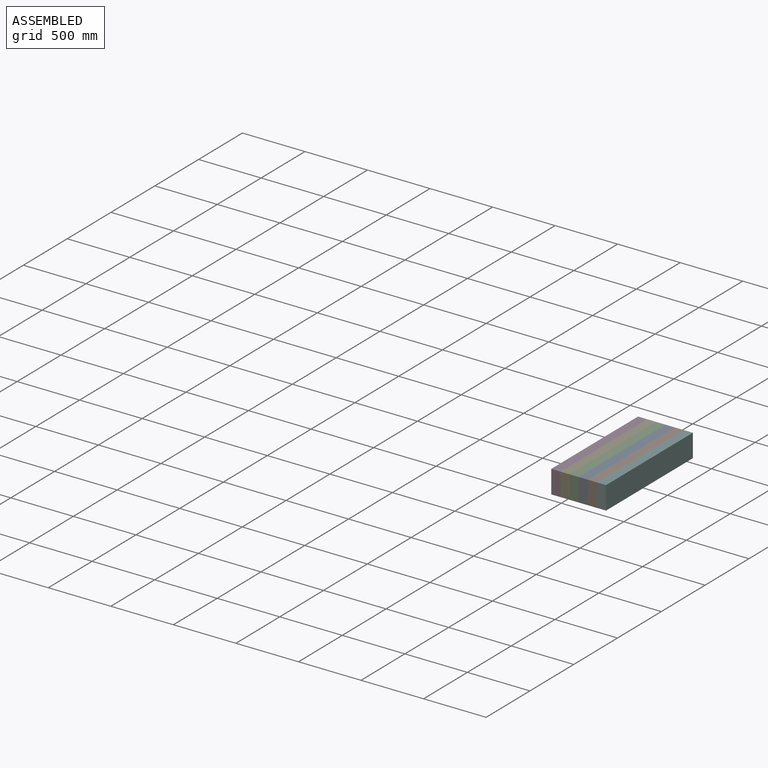
[diagram: assembled view]
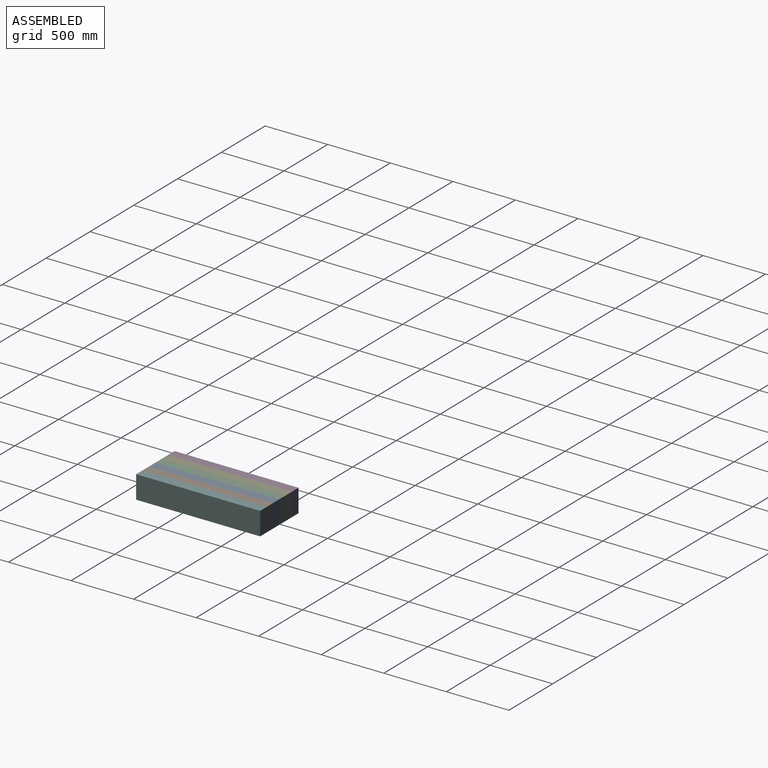
[diagram: assembled view, second angle]
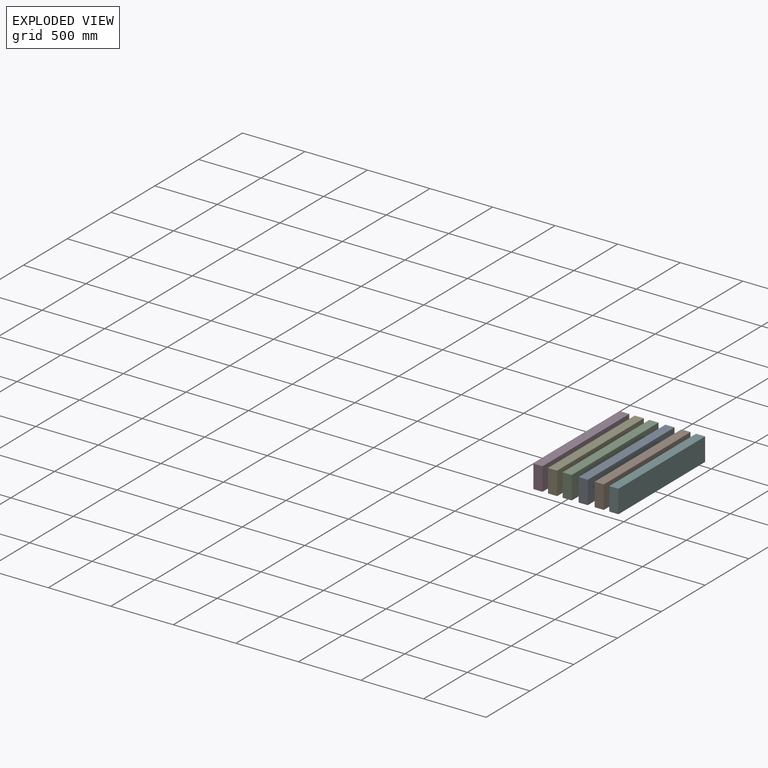
[diagram: exploded view]
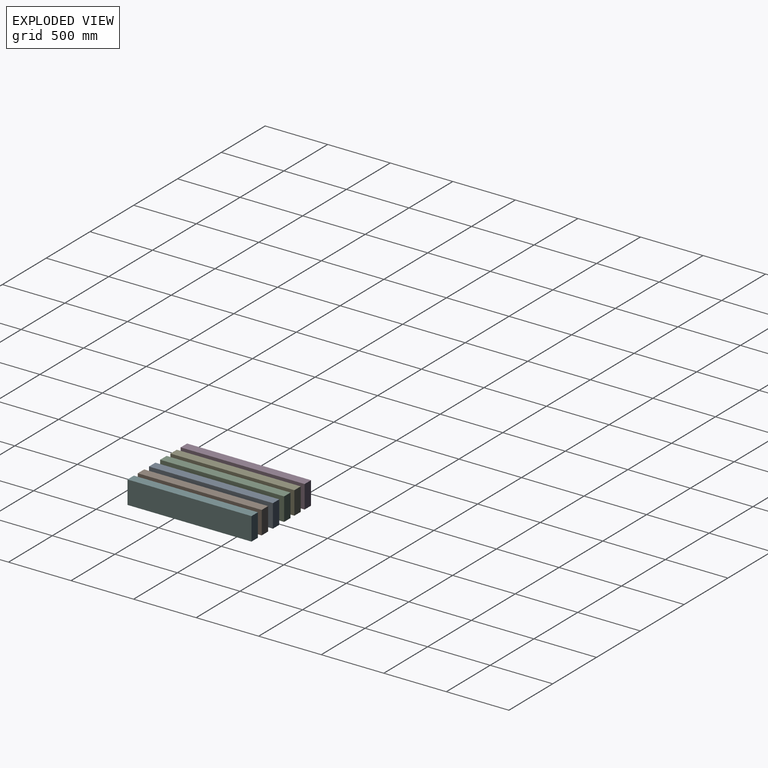
[diagram: exploded view, second angle]
ASSEMBLY  parts=6 mates=5
PART A: 6 faces, bbox 73x990.6x184.2 mm
  f0: plane 990.6x184.15mm, normal (-1,0,0), area 182419mm2, adj f1,f3,f4,f5
  f1: plane 184.15x73.03mm, normal (0,-1,0), area 13447.6mm2, adj f0,f2,f4,f5
  f2: plane 990.6x184.15mm, normal (1,0,0), area 182419mm2, adj f1,f3,f4,f5
  f3: plane 184.15x73.03mm, normal (0,1,0), area 13447.6mm2, adj f0,f2,f4,f5
  f4: plane 990.6x73.03mm, normal (0,0,1), area 72338.6mm2, adj f0,f1,f2,f3
  f5: plane 990.6x73.03mm, normal (0,0,-1), area 72338.6mm2, adj f0,f1,f2,f3
PART B: same geometry as A
PART C: same geometry as A
PART D: same geometry as A
PART E: same geometry as A
PART F: same geometry as A
PLACE A rot(axis=(0,1,0),180deg) t=(-1498.22,1473.01,65.99)mm
PLACE B rot(axis=(0,1,0),180deg) t=(-1425.2,1473.01,65.99)mm
PLACE C rot(axis=(0,1,0),180deg) t=(-1571.25,1473.01,65.99)mm
PLACE D t=(892.09,1473.01,-118.16)mm
PLACE E rot(axis=(0,1,0),180deg) t=(-1644.27,1473.01,65.99)mm
PLACE F rot(axis=(0,1,0),180deg) t=(-1352.17,1473.01,65.99)mm
MATE fastened C.f0 <-> A.f2  axis (1,0,0) through (-230.04,2308.26,-26.08)mm
MATE fastened D.f2 <-> E.f2  axis (1,0,0) through (-376.09,2308.26,-26.08)mm
MATE fastened B.f2 <-> A.f0  axis (-1,0,0) through (-157.02,2308.26,-26.08)mm
MATE fastened C.f2 <-> E.f0  axis (-1,0,0) through (-303.07,2308.26,-26.08)mm
MATE fastened F.f2 <-> B.f0  axis (-1,0,0) through (-83.99,2308.26,-26.08)mm
